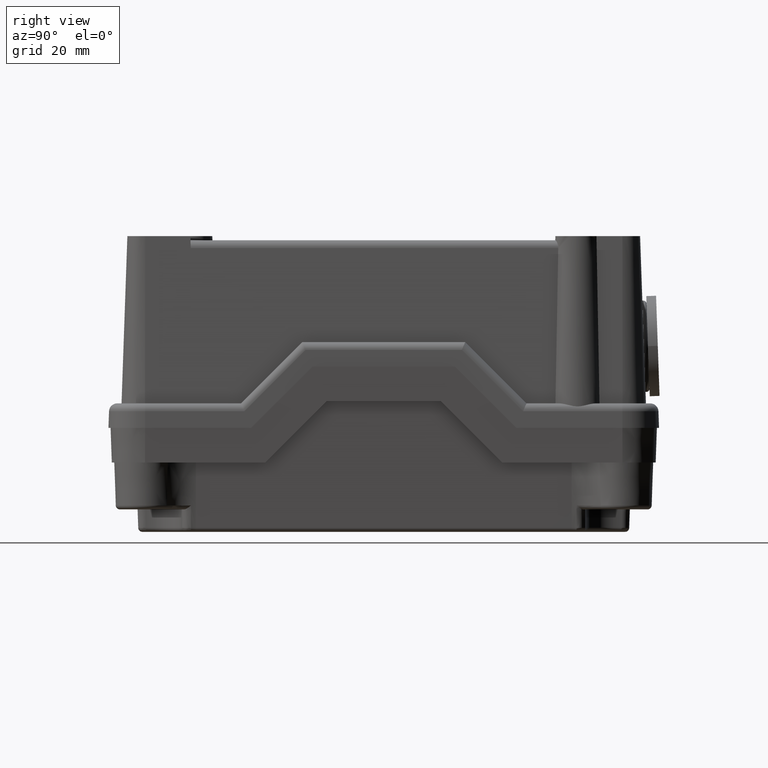
[diagram: clean part render]
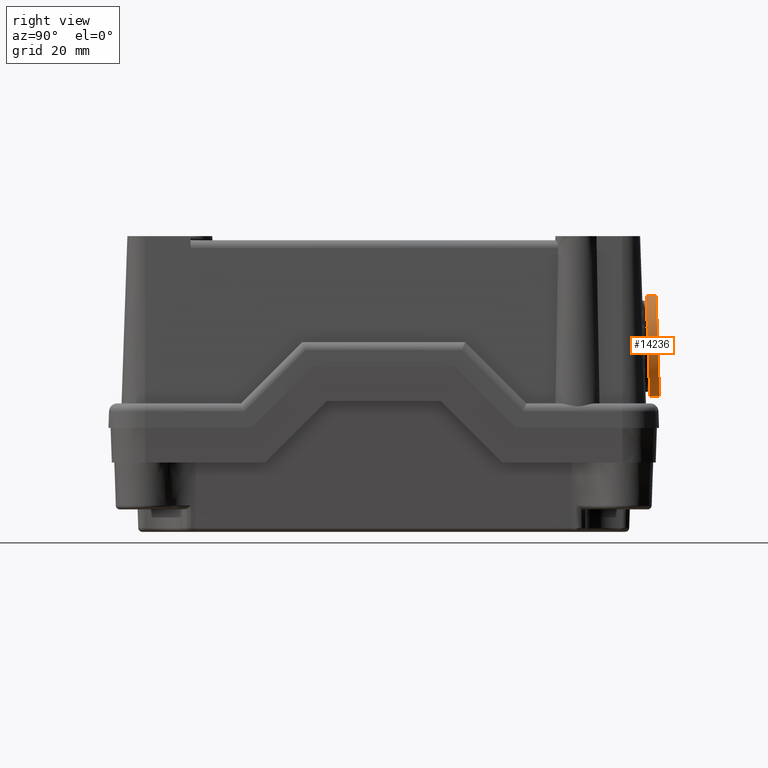
[diagram: same view with one face highlighted and labeled with its STEP entity id]
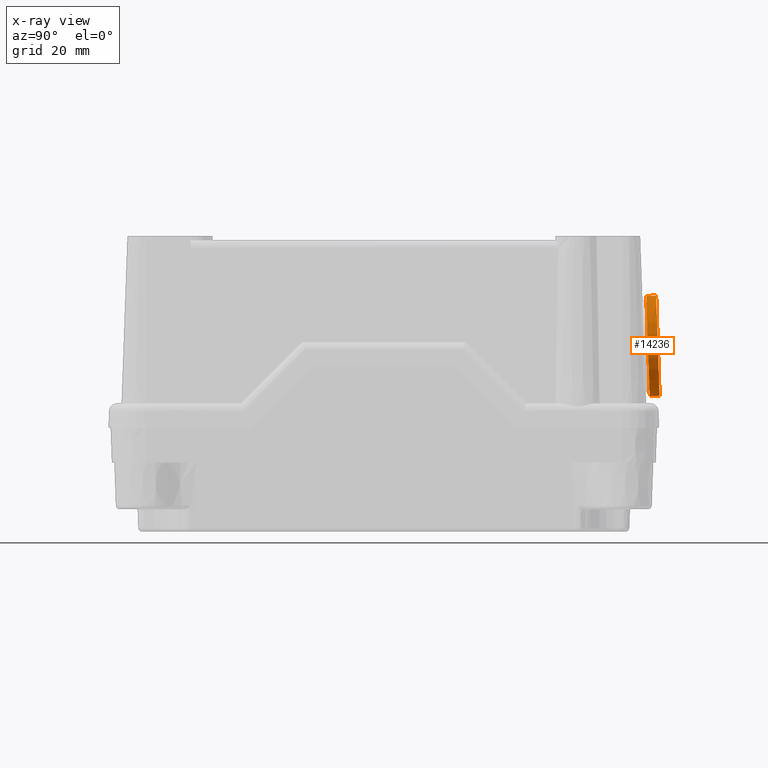
[diagram: x-ray of the same camera — body ghosted, the highlighted face saturated]
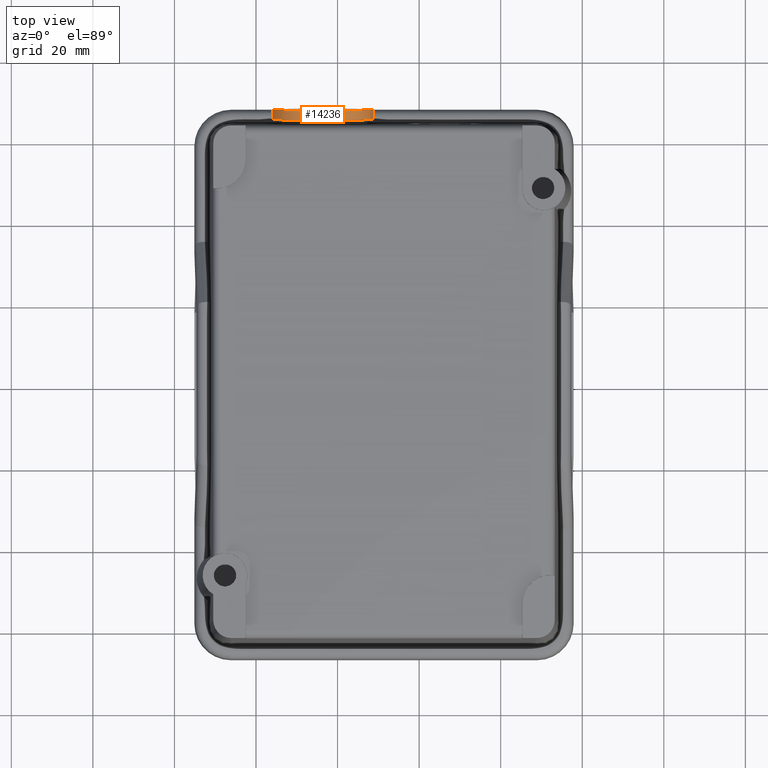
[diagram: same view with one face highlighted and labeled with its STEP entity id]
A machine part, right view. The second image highlights one B-rep face of the part: STEP entity #14236.
The next image is the same camera in x-ray: the body ghosted, the highlighted face saturated — about 0% of this face is hidden behind the body in this view.
A second angle (top view) of the same face is appended — the face is thin or edge-on in the first view.
In plain terms, the highlighted cylindrical surface (bore or boss wall) has radius 12.375 mm, axis along (0, 0.9994, 0.0349).
Its self-contained STEP definition (entity closure, byte-faithful):
#13734=CARTESIAN_POINT('',(11.201008446151272,-2.287778354852907,0.0));
#13735=VERTEX_POINT('',#13734);
#13736=CARTESIAN_POINT('',(-1.173991553848727,-2.287778354852908,0.0));
#13737=DIRECTION('',(0.0,0.0,-1.0));
#13738=DIRECTION('',(-1.0,0.0,0.0));
#13739=AXIS2_PLACEMENT_3D('',#13736,#13737,#13738);
#13740=CIRCLE('',#13739,12.375000000000000);
#13741=EDGE_CURVE('',#13735,#13735,#13740,.T.);
#14217=CARTESIAN_POINT('',(-1.173991553848727,-2.287778354852908,0.0));
#14218=DIRECTION('',(0.0,0.0,1.0));
#14219=DIRECTION('',(-1.0,0.0,0.0));
#14220=AXIS2_PLACEMENT_3D('',#14217,#14218,#14219);
#14221=CYLINDRICAL_SURFACE('',#14220,12.375000000000000);
#14222=CARTESIAN_POINT('',(11.201008446151272,-2.287778354852907,2.400000000000000));
#14223=VERTEX_POINT('',#14222);
#14224=CARTESIAN_POINT('',(-1.173991553848727,-2.287778354852908,2.400000000000000));
#14225=DIRECTION('',(0.0,0.0,-1.0));
#14226=DIRECTION('',(-1.0,0.0,0.0));
#14227=AXIS2_PLACEMENT_3D('',#14224,#14225,#14226);
#14228=CIRCLE('',#14227,12.375000000000000);
#14229=EDGE_CURVE('',#14223,#14223,#14228,.T.);
#14230=ORIENTED_EDGE('',*,*,#14229,.T.);
#14231=EDGE_LOOP('',(#14230));
#14232=FACE_OUTER_BOUND('',#14231,.T.);
#14233=ORIENTED_EDGE('',*,*,#13741,.F.);
#14234=EDGE_LOOP('',(#14233));
#14235=FACE_BOUND('',#14234,.T.);
#14236=ADVANCED_FACE('',(#14232,#14235),#14221,.T.);